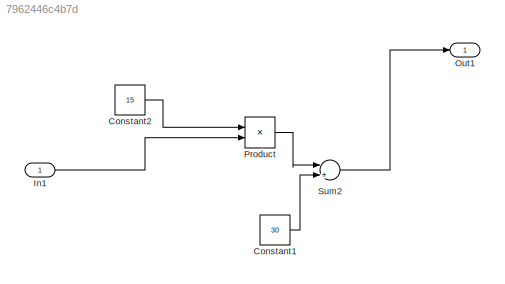
MODEL slx_7962446c4b7d
KIND model
CONFIG AbsTol = auto
CONFIG EnableMultiTasking = off
CONFIG FixedStep = auto
CONFIG MaxStep = auto
CONFIG MinStep = auto
CONFIG RelTol = 1e-3
CONFIG SampleTimeConstraint = Unconstrained
CONFIG Solver = FixedStepDiscrete
CONFIG SolverName = FixedStepDiscrete
CONFIG StartTime = 0.0
CONFIG StopTime = 30.0
BLOCK [Constant] Constant1
  OutDataTypeStr = fixdt(1,16)
  Value = 30
BLOCK [Constant] Constant2
  OutDataTypeStr = fixdt(1,16)
  Value = 15
BLOCK [Inport] In1
  IconDisplay = Port number
  OutDataTypeStr = fixdt(1,16,14)
  PortDimensions = [1 1]
  SampleTime = [2.2675736961451248e-05,0]
  SamplingMode = Sample based
  SignalType = real
BLOCK [Outport] Out1
  IconDisplay = Port number
  OutDataTypeStr = int16
  PortDimensions = [1 1]
  SampleTime = [2.2675736961451248e-05,0]
  SamplingMode = Sample based
  SignalType = real
BLOCK [Product] Product
  InputSameDT = off
  OutDataTypeStr = Inherit: Inherit via internal rule
  Ports = [2, 1]
  RndMeth = Floor
BLOCK [Sum] Sum2
  AccumDataTypeStr = fixdt(1,16,0)
  InputSameDT = off
  Inputs = |++
  OutDataTypeStr = Inherit: Inherit via internal rule
  Ports = [2, 1]
  RndMeth = Ceiling
LINE Constant1:1 -> Sum2:2
LINE Constant2:1 -> Product:1
LINE In1:1 -> Product:2
LINE Product:1 -> Sum2:1
LINE Sum2:1 -> Out1:1
